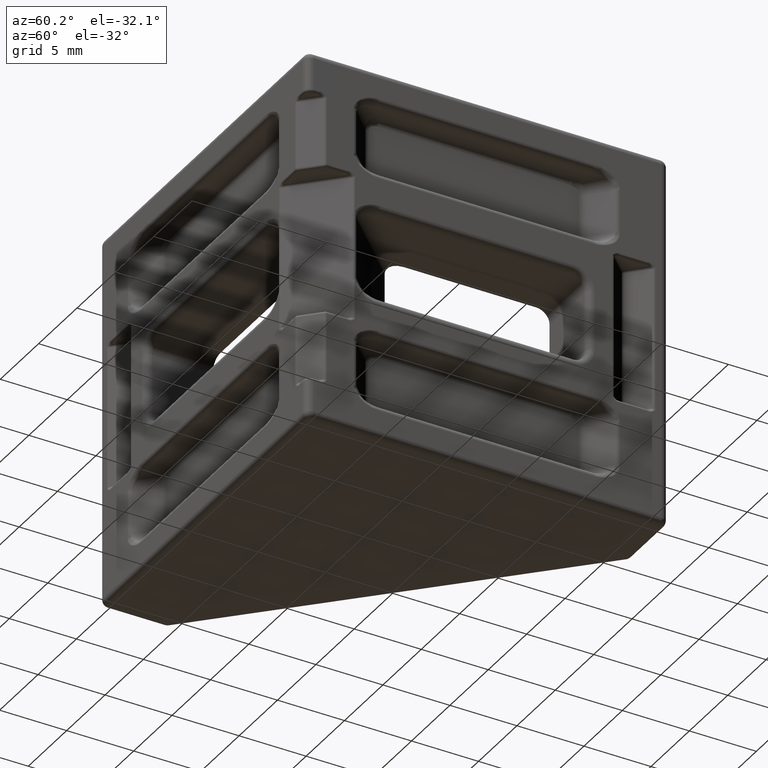
[diagram: clean part render]
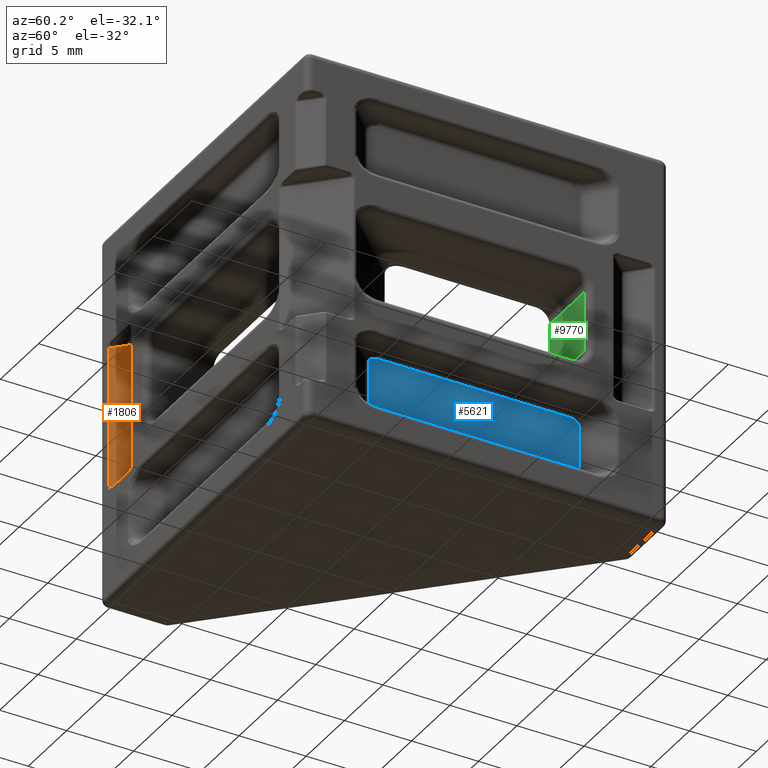
[diagram: same view with three faces highlighted in distinct colors, each labeled with its STEP entity id]
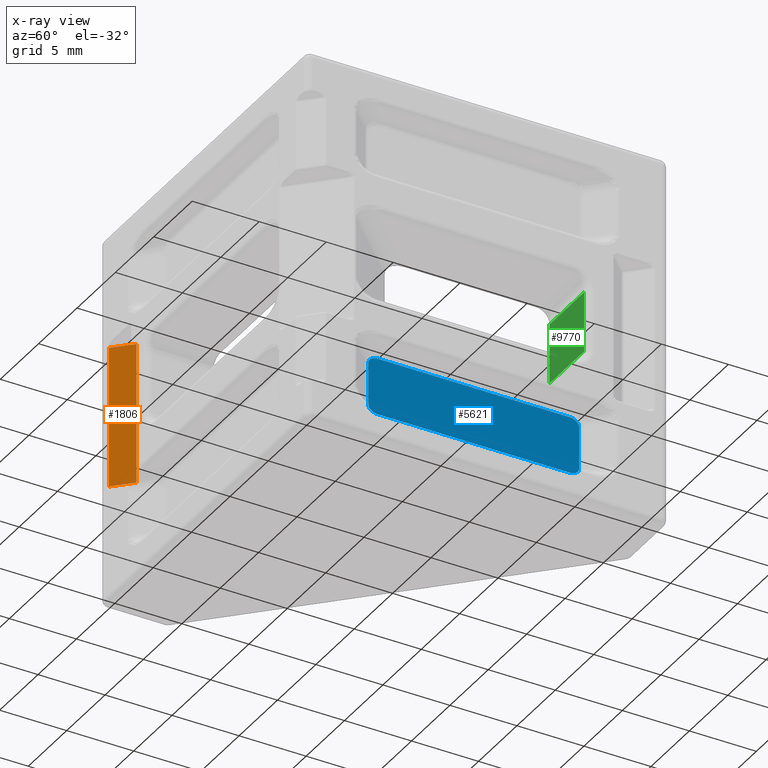
[diagram: x-ray of the same camera — body ghosted, the three highlighted faces saturated]
A machine part, auxiliary view with three faces highlighted in distinct colors.
The next image is the same camera in x-ray (body ghosted, the three faces saturated) — at least one of them is partly hidden behind the body in this view.
Their STEP definitions:

[orange] entity #1806 — the highlighted planar face has unit normal (0.7071, -0.7071, 0).
#109 = AXIS2_PLACEMENT_3D ( 'NONE', #5455, #1520, #9593 ) ;
#1520 = DIRECTION ( 'NONE',  ( 0.7071067811865479100, -0.7071067811865471300, 0.0000000000000000000 ) ) ;
#1806 = ADVANCED_FACE ( 'NONE', ( #2157 ), #2186, .T. ) ;
#2149 = CARTESIAN_POINT ( 'NONE',  ( -24.55915005775760200, 1.377526676164954100, -5.300000000000000700 ) ) ;
#2157 = FACE_OUTER_BOUND ( 'NONE', #7395, .T. ) ;
#2186 = PLANE ( 'NONE',  #109 ) ;
#2232 = EDGE_CURVE ( 'NONE', #5579, #2241, #2784, .T. ) ;
#2241 = VERTEX_POINT ( 'NONE', #2149 ) ;
#2282 = VERTEX_POINT ( 'NONE', #6216 ) ;
#2331 = VERTEX_POINT ( 'NONE', #4599 ) ;
#2677 = CARTESIAN_POINT ( 'NONE',  ( -25.87809809015986700, 0.05857864376268726700, -5.499999999999999100 ) ) ;
#2784 = LINE ( 'NONE', #2897, #8844 ) ;
#2833 = CARTESIAN_POINT ( 'NONE',  ( -25.87809809015986700, 0.05857864376268810000, -5.299999999999998900 ) ) ;
#2858 = VECTOR ( 'NONE', #8432, 1000.000000000000000 ) ;
#2897 = CARTESIAN_POINT ( 'NONE',  ( -12.96833836696129400, 12.96833836696127500, -5.300000000000014000 ) ) ;
#3608 = EDGE_CURVE ( 'NONE', #2282, #2331, #8822, .T. ) ;
#3845 = DIRECTION ( 'NONE',  ( -0.7071067811865471300, -0.7071067811865479100, -3.942553354492745000E-016 ) ) ;
#4006 = ORIENTED_EDGE ( 'NONE', *, *, #3608, .T. ) ;
#4554 = DIRECTION ( 'NONE',  ( 0.7071067811865471300, 0.7071067811865479100, -7.885106708985490000E-016 ) ) ;
#4599 = CARTESIAN_POINT ( 'NONE',  ( -25.87809809015986700, 0.05857864376268810700, 5.299999999999999800 ) ) ;
#5261 = ORIENTED_EDGE ( 'NONE', *, *, #2232, .T. ) ;
#5455 = CARTESIAN_POINT ( 'NONE',  ( -12.96833836696129100, 12.96833836696127800, 1.709856012066543400E-030 ) ) ;
#5461 = DIRECTION ( 'NONE',  ( 0.0000000000000000000, 0.0000000000000000000, 1.000000000000000000 ) ) ;
#5533 = CARTESIAN_POINT ( 'NONE',  ( -12.96833836696129300, 12.96833836696127700, 5.300000000000006900 ) ) ;
#5579 = VERTEX_POINT ( 'NONE', #2833 ) ;
#6118 = LINE ( 'NONE', #10230, #9274 ) ;
#6216 = CARTESIAN_POINT ( 'NONE',  ( -24.55915005775760200, 1.377526676164954100, 5.300000000000000700 ) ) ;
#6476 = ORIENTED_EDGE ( 'NONE', *, *, #7289, .T. ) ;
#6675 = VECTOR ( 'NONE', #3845, 1000.000000000000000 ) ;
#7289 = EDGE_CURVE ( 'NONE', #2331, #5579, #8261, .T. ) ;
#7395 = EDGE_LOOP ( 'NONE', ( #4006, #6476, #5261, #8733 ) ) ;
#8261 = LINE ( 'NONE', #2677, #2858 ) ;
#8432 = DIRECTION ( 'NONE',  ( 0.0000000000000000000, 0.0000000000000000000, -1.000000000000000000 ) ) ;
#8733 = ORIENTED_EDGE ( 'NONE', *, *, #9374, .T. ) ;
#8822 = LINE ( 'NONE', #5533, #6675 ) ;
#8844 = VECTOR ( 'NONE', #4554, 1000.000000000000000 ) ;
#9274 = VECTOR ( 'NONE', #5461, 1000.000000000000000 ) ;
#9374 = EDGE_CURVE ( 'NONE', #2241, #2282, #6118, .T. ) ;
#9593 = DIRECTION ( 'NONE',  ( 0.7071067811865471300, 0.7071067811865479100, 0.0000000000000000000 ) ) ;
#10230 = CARTESIAN_POINT ( 'NONE',  ( -24.55915005775759900, 1.377526676164954300, 1.709856012066543400E-030 ) ) ;

[blue] entity #5621 — the highlighted planar face has unit normal (-1, -0, 0).
#245 = CARTESIAN_POINT ( 'NONE',  ( -1.697056274847714900, 5.581118318204302000, -10.49999999999999800 ) ) ;
#1133 = DIRECTION ( 'NONE',  ( -3.212450881438531700E-017, 1.000000000000000000, 1.075995380128683400E-016 ) ) ;
#1168 = CARTESIAN_POINT ( 'NONE',  ( -1.697056274847714300, 5.581118318204305600, -6.957106781186547000 ) ) ;
#1181 = CARTESIAN_POINT ( 'NONE',  ( -1.697056274847715400, 21.28893936688449900, -10.49999999999999800 ) ) ;
#1210 = CARTESIAN_POINT ( 'NONE',  ( -1.697056274847714900, 6.788225099390851700, -6.749999999999996400 ) ) ;
#1219 = CARTESIAN_POINT ( 'NONE',  ( -1.697056274847715400, 20.58183258569794900, -11.00000000000000400 ) ) ;
#1279 = VERTEX_POINT ( 'NONE', #3615 ) ;
#1456 = DIRECTION ( 'NONE',  ( 3.212450881438531700E-017, -1.000000000000000000, 0.0000000000000000000 ) ) ;
#1568 = CARTESIAN_POINT ( 'NONE',  ( -1.697056274847714900, 5.581118318204303800, -7.249999999999999100 ) ) ;
#1942 = CARTESIAN_POINT ( 'NONE',  ( -1.697056274847714900, 5.581118318204303800, -7.249999999999999100 ) ) ;
#2057 = CARTESIAN_POINT ( 'NONE',  ( -1.697056274847715400, 21.28893936688449900, -10.79289321881345000 ) ) ;
#2158 = EDGE_CURVE ( 'NONE', #8566, #4259, #6207, .T. ) ;
#2319 = ORIENTED_EDGE ( 'NONE', *, *, #8911, .T. ) ;
#2522 = ORIENTED_EDGE ( 'NONE', *, *, #10003, .T. ) ;
#2698 = CARTESIAN_POINT ( 'NONE',  ( -1.697056274847715800, 20.99604614807104100, -6.750000000000000900 ) ) ;
#2736 = CARTESIAN_POINT ( 'NONE',  ( -1.697056274847715800, 21.28893936688449500, -6.957106781186547000 ) ) ;
#3266 = EDGE_CURVE ( 'NONE', #5264, #5435, #9329, .T. ) ;
#3368 = VECTOR ( 'NONE', #4295, 1000.000000000000000 ) ;
#3407 = LINE ( 'NONE', #245, #8031 ) ;
#3433 = CARTESIAN_POINT ( 'NONE',  ( -1.697056274847715400, 20.58183258569794600, -6.749999999999997300 ) ) ;
#3575 = CARTESIAN_POINT ( 'NONE',  ( -1.697056274847714900, 6.288225099390852600, -11.00000000000000200 ) ) ;
#3605 = CARTESIAN_POINT ( 'NONE',  ( -1.697056274847714300, 5.874011537017758600, -6.749999999999998200 ) ) ;
#3615 = CARTESIAN_POINT ( 'NONE',  ( -1.697056274847715400, 20.58183258569794600, -6.749999999999997300 ) ) ;
#3707 = ORIENTED_EDGE ( 'NONE', *, *, #6971, .T. ) ;
#4227 = VERTEX_POINT ( 'NONE', #6463 ) ;
#4259 = VERTEX_POINT ( 'NONE', #1568 ) ;
#4288 = FACE_OUTER_BOUND ( 'NONE', #5972, .T. ) ;
#4295 = DIRECTION ( 'NONE',  ( 3.212450881438531700E-017, -1.000000000000000000, 5.379976900643416900E-017 ) ) ;
#4393 = VECTOR ( 'NONE', #10276, 1000.000000000000000 ) ;
#4398 = CARTESIAN_POINT ( 'NONE',  ( -1.697056274847714900, 6.288225099390852600, -6.749999999999996400 ) ) ;
#4536 = CARTESIAN_POINT ( 'NONE',  ( -1.697056274847715400, 21.28893936688449900, 14.00000000000000000 ) ) ;
#5064 = CARTESIAN_POINT ( 'NONE',  ( -1.697056274847715400, 20.08183258569794900, -11.00000000000000400 ) ) ;
#5264 = VERTEX_POINT ( 'NONE', #9603 ) ;
#5359 =( BOUNDED_CURVE ( )  B_SPLINE_CURVE ( 3, ( #10096, #6758, #6825, #3575 ),
 .UNSPECIFIED., .F., .F. ) 
 B_SPLINE_CURVE_WITH_KNOTS ( ( 4, 4 ),
 ( 3.141592653589793100, 4.712388980384689700 ),
 .UNSPECIFIED. ) 
 CURVE ( )  GEOMETRIC_REPRESENTATION_ITEM ( )  RATIONAL_B_SPLINE_CURVE ( ( 1.000000000000000000, 0.8047378541243649400, 0.8047378541243649400, 1.000000000000000000 ) ) 
 REPRESENTATION_ITEM ( '' )  );
#5366 = EDGE_CURVE ( 'NONE', #5435, #8805, #9079, .T. ) ;
#5435 = VERTEX_POINT ( 'NONE', #1219 ) ;
#5621 = ADVANCED_FACE ( 'NONE', ( #4288 ), #6147, .F. ) ;
#5642 = ORIENTED_EDGE ( 'NONE', *, *, #6308, .T. ) ;
#5972 = EDGE_LOOP ( 'NONE', ( #3707, #2319, #2522, #6997, #5642, #8801, #7111, #7541 ) ) ;
#6121 = CARTESIAN_POINT ( 'NONE',  ( -1.697056274847715400, 20.58183258569794900, -11.00000000000000400 ) ) ;
#6147 = PLANE ( 'NONE',  #9837 ) ;
#6207 =( BOUNDED_CURVE ( )  B_SPLINE_CURVE ( 3, ( #8433, #3605, #1168, #1942 ),
 .UNSPECIFIED., .F., .F. ) 
 B_SPLINE_CURVE_WITH_KNOTS ( ( 4, 4 ),
 ( 1.570796326794896600, 3.141592653589793100 ),
 .UNSPECIFIED. ) 
 CURVE ( )  GEOMETRIC_REPRESENTATION_ITEM ( )  RATIONAL_B_SPLINE_CURVE ( ( 1.000000000000000000, 0.8047378541243649400, 0.8047378541243649400, 1.000000000000000000 ) ) 
 REPRESENTATION_ITEM ( '' )  );
#6308 = EDGE_CURVE ( 'NONE', #4259, #7349, #3407, .T. ) ;
#6463 = CARTESIAN_POINT ( 'NONE',  ( -1.697056274847715400, 21.28893936688449900, -7.250000000000000000 ) ) ;
#6758 = CARTESIAN_POINT ( 'NONE',  ( -1.697056274847714300, 5.581118318204305600, -10.79289321881345600 ) ) ;
#6825 = CARTESIAN_POINT ( 'NONE',  ( -1.697056274847714300, 5.874011537017758600, -11.00000000000000200 ) ) ;
#6847 = EDGE_CURVE ( 'NONE', #7349, #5264, #5359, .T. ) ;
#6889 = CARTESIAN_POINT ( 'NONE',  ( -1.697056274847715600, 28.69705627484771400, 14.00000000000000000 ) ) ;
#6971 = EDGE_CURVE ( 'NONE', #8805, #4227, #9547, .T. ) ;
#6997 = ORIENTED_EDGE ( 'NONE', *, *, #2158, .T. ) ;
#7111 = ORIENTED_EDGE ( 'NONE', *, *, #3266, .T. ) ;
#7349 = VERTEX_POINT ( 'NONE', #9208 ) ;
#7519 =( BOUNDED_CURVE ( )  B_SPLINE_CURVE ( 3, ( #9962, #2736, #2698, #3433 ),
 .UNSPECIFIED., .F., .F. ) 
 B_SPLINE_CURVE_WITH_KNOTS ( ( 4, 4 ),
 ( 3.141592653589793100, 4.712388980384689700 ),
 .UNSPECIFIED. ) 
 CURVE ( )  GEOMETRIC_REPRESENTATION_ITEM ( )  RATIONAL_B_SPLINE_CURVE ( ( 1.000000000000000000, 0.8047378541243649400, 0.8047378541243649400, 1.000000000000000000 ) ) 
 REPRESENTATION_ITEM ( '' )  );
#7541 = ORIENTED_EDGE ( 'NONE', *, *, #5366, .T. ) ;
#8031 = VECTOR ( 'NONE', #9813, 1000.000000000000000 ) ;
#8433 = CARTESIAN_POINT ( 'NONE',  ( -1.697056274847714900, 6.288225099390852600, -6.749999999999996400 ) ) ;
#8566 = VERTEX_POINT ( 'NONE', #4398 ) ;
#8645 = DIRECTION ( 'NONE',  ( -1.000000000000000000, -3.212450881438531700E-017, 0.0000000000000000000 ) ) ;
#8801 = ORIENTED_EDGE ( 'NONE', *, *, #6847, .T. ) ;
#8805 = VERTEX_POINT ( 'NONE', #9590 ) ;
#8911 = EDGE_CURVE ( 'NONE', #4227, #1279, #7519, .T. ) ;
#9079 =( BOUNDED_CURVE ( )  B_SPLINE_CURVE ( 3, ( #6121, #9321, #2057, #1181 ),
 .UNSPECIFIED., .F., .F. ) 
 B_SPLINE_CURVE_WITH_KNOTS ( ( 4, 4 ),
 ( 1.570796326794896600, 3.141592653589793100 ),
 .UNSPECIFIED. ) 
 CURVE ( )  GEOMETRIC_REPRESENTATION_ITEM ( )  RATIONAL_B_SPLINE_CURVE ( ( 1.000000000000000000, 0.8047378541243649400, 0.8047378541243649400, 1.000000000000000000 ) ) 
 REPRESENTATION_ITEM ( '' )  );
#9208 = CARTESIAN_POINT ( 'NONE',  ( -1.697056274847714900, 5.581118318204302000, -10.50000000000000000 ) ) ;
#9321 = CARTESIAN_POINT ( 'NONE',  ( -1.697056274847715400, 20.99604614807104100, -11.00000000000000200 ) ) ;
#9329 = LINE ( 'NONE', #5064, #9955 ) ;
#9547 = LINE ( 'NONE', #4536, #4393 ) ;
#9590 = CARTESIAN_POINT ( 'NONE',  ( -1.697056274847715400, 21.28893936688449900, -10.49999999999999800 ) ) ;
#9603 = CARTESIAN_POINT ( 'NONE',  ( -1.697056274847714900, 6.288225099390852600, -11.00000000000000200 ) ) ;
#9813 = DIRECTION ( 'NONE',  ( -7.961019942076863600E-033, 2.478176394252580200E-016, -1.000000000000000000 ) ) ;
#9837 = AXIS2_PLACEMENT_3D ( 'NONE', #6889, #8645, #1456 ) ;
#9955 = VECTOR ( 'NONE', #1133, 1000.000000000000000 ) ;
#9962 = CARTESIAN_POINT ( 'NONE',  ( -1.697056274847715400, 21.28893936688449900, -7.250000000000000000 ) ) ;
#10003 = EDGE_CURVE ( 'NONE', #1279, #8566, #10147, .T. ) ;
#10096 = CARTESIAN_POINT ( 'NONE',  ( -1.697056274847714900, 5.581118318204302000, -10.50000000000000000 ) ) ;
#10147 = LINE ( 'NONE', #1210, #3368 ) ;
#10276 = DIRECTION ( 'NONE',  ( 0.0000000000000000000, 0.0000000000000000000, 1.000000000000000000 ) ) ;

[green] entity #9770 — the highlighted planar face has unit normal (0, 1, 0).
#525 = CARTESIAN_POINT ( 'NONE',  ( -0.5000000000000004400, 20.98061325481596700, -3.250000000000000900 ) ) ;
#641 = LINE ( 'NONE', #5927, #3459 ) ;
#892 = VERTEX_POINT ( 'NONE', #1109 ) ;
#1109 = CARTESIAN_POINT ( 'NONE',  ( -5.000000000000000900, 20.98061325481596400, -2.250000000000000400 ) ) ;
#1515 = LINE ( 'NONE', #5791, #2011 ) ;
#1666 = EDGE_CURVE ( 'NONE', #7014, #892, #641, .T. ) ;
#1895 = ORIENTED_EDGE ( 'NONE', *, *, #9396, .T. ) ;
#2011 = VECTOR ( 'NONE', #4154, 1000.000000000000000 ) ;
#2447 = LINE ( 'NONE', #9454, #9143 ) ;
#2569 = VECTOR ( 'NONE', #9311, 1000.000000000000000 ) ;
#2617 = EDGE_CURVE ( 'NONE', #892, #9688, #1515, .T. ) ;
#3282 = PLANE ( 'NONE',  #7022 ) ;
#3459 = VECTOR ( 'NONE', #9063, 1000.000000000000000 ) ;
#4154 = DIRECTION ( 'NONE',  ( 1.000000000000000000, -0.0000000000000000000, -7.049624904291373900E-017 ) ) ;
#4299 = ORIENTED_EDGE ( 'NONE', *, *, #1666, .T. ) ;
#4718 = ORIENTED_EDGE ( 'NONE', *, *, #2617, .T. ) ;
#4887 = DIRECTION ( 'NONE',  ( 0.0000000000000000000, -0.0000000000000000000, 1.000000000000000000 ) ) ;
#5619 = LINE ( 'NONE', #525, #2569 ) ;
#5791 = CARTESIAN_POINT ( 'NONE',  ( 23.00000000000000000, 20.98061325481596700, -2.250000000000002700 ) ) ;
#5927 = CARTESIAN_POINT ( 'NONE',  ( -5.000000000000000900, 20.98061325481596400, -11.00000000000000000 ) ) ;
#6240 = ORIENTED_EDGE ( 'NONE', *, *, #10101, .T. ) ;
#7014 = VERTEX_POINT ( 'NONE', #7755 ) ;
#7022 = AXIS2_PLACEMENT_3D ( 'NONE', #7269, #9613, #4887 ) ;
#7269 = CARTESIAN_POINT ( 'NONE',  ( 23.00000000000000000, 20.98061325481596700, -3.250000000000000900 ) ) ;
#7755 = CARTESIAN_POINT ( 'NONE',  ( -5.000000000000000900, 20.98061325481596400, 2.250000000000000400 ) ) ;
#8381 = VERTEX_POINT ( 'NONE', #10438 ) ;
#8728 = CARTESIAN_POINT ( 'NONE',  ( -0.5000000000000004400, 20.98061325481596700, -2.250000000000001300 ) ) ;
#9063 = DIRECTION ( 'NONE',  ( 0.0000000000000000000, 0.0000000000000000000, -1.000000000000000000 ) ) ;
#9143 = VECTOR ( 'NONE', #10267, 1000.000000000000000 ) ;
#9311 = DIRECTION ( 'NONE',  ( -0.0000000000000000000, -0.0000000000000000000, 1.000000000000000000 ) ) ;
#9395 = FACE_OUTER_BOUND ( 'NONE', #10345, .T. ) ;
#9396 = EDGE_CURVE ( 'NONE', #8381, #7014, #2447, .T. ) ;
#9454 = CARTESIAN_POINT ( 'NONE',  ( 23.00000000000000000, 20.98061325481596700, 2.250000000000002200 ) ) ;
#9613 = DIRECTION ( 'NONE',  ( 0.0000000000000000000, 1.000000000000000000, 0.0000000000000000000 ) ) ;
#9688 = VERTEX_POINT ( 'NONE', #8728 ) ;
#9770 = ADVANCED_FACE ( 'NONE', ( #9395 ), #3282, .F. ) ;
#10101 = EDGE_CURVE ( 'NONE', #9688, #8381, #5619, .T. ) ;
#10267 = DIRECTION ( 'NONE',  ( -1.000000000000000000, 0.0000000000000000000, -7.049624904291373900E-017 ) ) ;
#10345 = EDGE_LOOP ( 'NONE', ( #4718, #6240, #1895, #4299 ) ) ;
#10438 = CARTESIAN_POINT ( 'NONE',  ( -0.5000000000000004400, 20.98061325481596700, 2.250000000000000900 ) ) ;